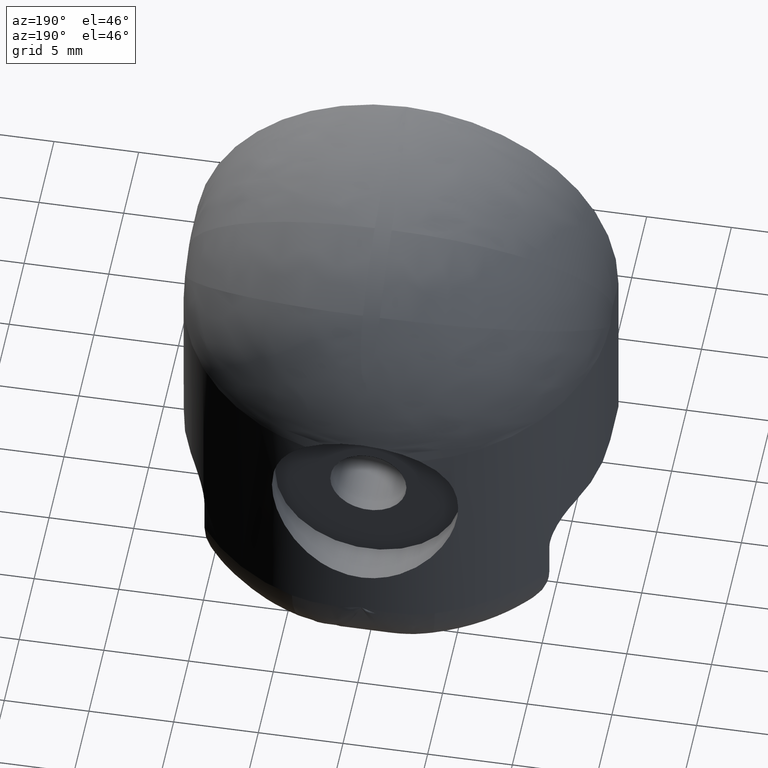
[diagram: clean part render]
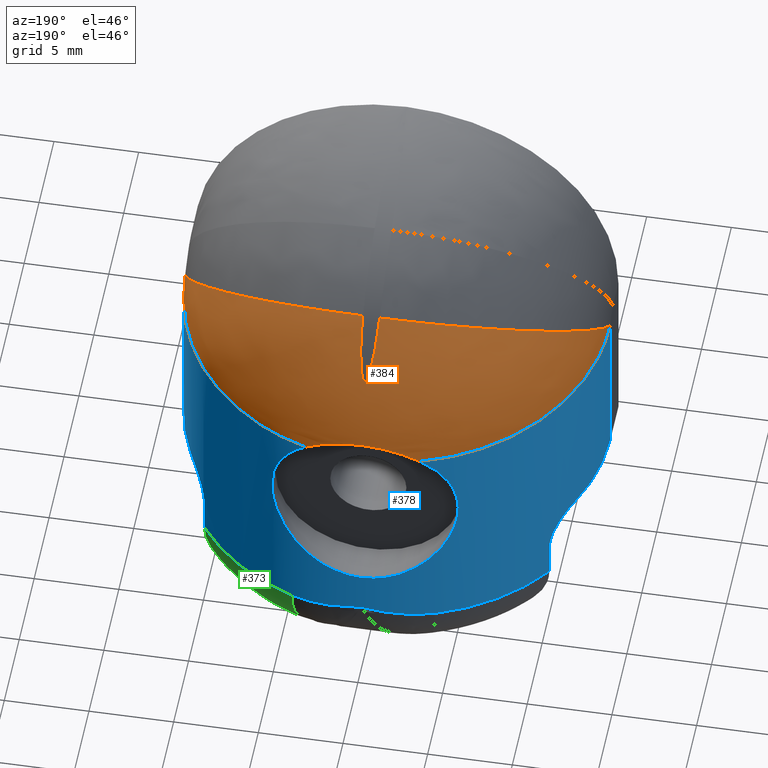
[diagram: same view with three faces highlighted in distinct colors, each labeled with its STEP entity id]
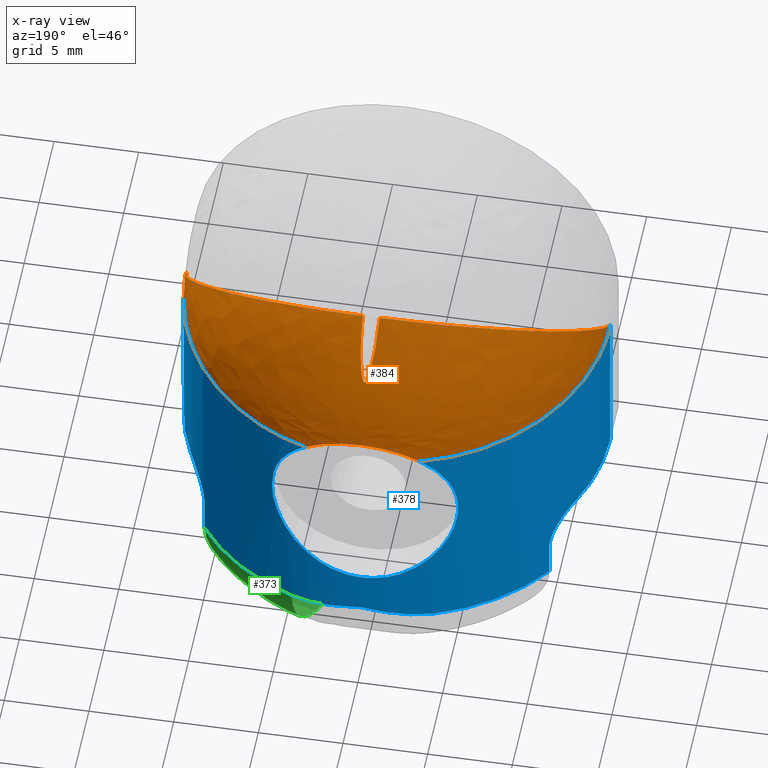
[diagram: x-ray of the same camera — body ghosted, the three highlighted faces saturated]
A machine part, auxiliary view with three faces highlighted in distinct colors.
The next image is the same camera in x-ray (body ghosted, the three faces saturated) — at least one of them is partly hidden behind the body in this view.
Their STEP definitions:

[orange] entity #384 — the highlighted face is a freeform B-spline surface patch.
#83=FACE_OUTER_BOUND('',#108,.T.);
#108=EDGE_LOOP('',(#316,#317,#318,#319,#320,#321));
#127=B_SPLINE_CURVE_WITH_KNOTS('',3,(#744,#745,#746,#747,#748,#749,#750,
#751,#752,#753,#754,#755,#756,#757,#758,#759,#760,#761,#762,#763,#764,#765,
#766,#767,#768,#769,#770,#771,#772,#773,#774,#775,#776,#777,#778,#779,#780,
#781,#782,#783,#784,#785,#786,#787,#788,#789,#790,#791,#792),
 .UNSPECIFIED.,.F.,.F.,(4,3,3,3,3,3,3,3,3,3,3,3,3,3,3,3,4),(-0.456646644338661,
-0.454868879260851,-0.45038531130313,-0.445515497622795,-0.444072703048636,
-0.438864950262662,-0.428755292193644,-0.422858124639853,-0.41438832924538,
-0.403835132300962,-0.393345346554678,-0.390837486181154,-0.380785982674792,
-0.373556848016943,-0.366193542880042,-0.359257082691747,-0.35883023774314),
 .UNSPECIFIED.);
#130=B_SPLINE_CURVE_WITH_KNOTS('',3,(#829,#830,#831,#832,#833,#834,#835,
#836),.UNSPECIFIED.,.F.,.F.,(4,1,1,1,1,4),(-0.582920065006398,-0.550907232540218,
-0.518894400074039,-0.502887983840949,-0.486881567607859,-0.485102951852755),
 .UNSPECIFIED.);
#132=B_SPLINE_CURVE_WITH_KNOTS('',3,(#859,#860,#861,#862,#863,#864,#865,
#866,#867,#868,#869,#870,#871,#872,#873,#874,#875,#876,#877,#878),
 .UNSPECIFIED.,.F.,.F.,(4,2,2,2,2,2,2,2,2,4),(-0.728876789548664,-0.565301202339906,
-0.459023419868751,-0.40685187926993,-0.377897681021136,-0.353836698865032,
-0.326001683528134,-0.278600268684722,-0.136689364270618,0.),
 .UNSPECIFIED.);
#135=B_SPLINE_CURVE_WITH_KNOTS('',3,(#1063,#1064,#1065,#1066,#1067,#1068,
#1069,#1070,#1071,#1072,#1073,#1074,#1075,#1076,#1077),.UNSPECIFIED.,.F.,
 .F.,(4,1,1,1,1,1,1,1,1,1,1,1,4),(0.35883023774314,0.39084307020932,0.422855902675499,
0.438862318908589,0.454868735141679,0.462871943258224,0.470875151374769,
0.478878359491314,0.486881567607859,0.502887983840949,0.518894400074039,
0.550907232540218,0.582920065006398),.UNSPECIFIED.);
#151=CIRCLE('',#438,12.);
#152=CIRCLE('',#439,12.);
#173=VERTEX_POINT('',#741);
#174=VERTEX_POINT('',#743);
#176=VERTEX_POINT('',#819);
#177=VERTEX_POINT('',#828);
#187=VERTEX_POINT('',#1060);
#188=VERTEX_POINT('',#1062);
#215=EDGE_CURVE('',#174,#173,#127,.T.);
#218=EDGE_CURVE('',#177,#176,#130,.T.);
#225=EDGE_CURVE('',#176,#174,#132,.T.);
#233=EDGE_CURVE('',#173,#187,#151,.T.);
#234=EDGE_CURVE('',#187,#188,#135,.T.);
#235=EDGE_CURVE('',#188,#177,#152,.T.);
#316=ORIENTED_EDGE('',*,*,#225,.T.);
#317=ORIENTED_EDGE('',*,*,#215,.T.);
#318=ORIENTED_EDGE('',*,*,#233,.T.);
#319=ORIENTED_EDGE('',*,*,#234,.T.);
#320=ORIENTED_EDGE('',*,*,#235,.T.);
#321=ORIENTED_EDGE('',*,*,#218,.T.);
#369=B_SPLINE_SURFACE_WITH_KNOTS('',3,3,((#970,#971,#972,#973,#974,#975,
#976,#977,#978,#979,#980,#981,#982,#983,#984),(#985,#986,#987,#988,#989,
#990,#991,#992,#993,#994,#995,#996,#997,#998,#999),(#1000,#1001,#1002,#1003,
#1004,#1005,#1006,#1007,#1008,#1009,#1010,#1011,#1012,#1013,#1014),(#1015,
#1016,#1017,#1018,#1019,#1020,#1021,#1022,#1023,#1024,#1025,#1026,#1027,
#1028,#1029),(#1030,#1031,#1032,#1033,#1034,#1035,#1036,#1037,#1038,#1039,
#1040,#1041,#1042,#1043,#1044),(#1045,#1046,#1047,#1048,#1049,#1050,#1051,
#1052,#1053,#1054,#1055,#1056,#1057,#1058,#1059)),.UNSPECIFIED.,.F.,.F.,
 .F.,(4,1,1,4),(4,1,1,1,1,1,1,1,1,1,1,1,4),(0.,0.285714285714286,0.571428571428571,
1.),(0.35883023774314,0.39084307020932,0.422855902675499,0.438862318908589,
0.454868735141679,0.462871943258224,0.470875151374769,0.478878359491314,
0.486881567607859,0.502887983840949,0.518894400074039,0.550907232540218,
0.582920065006398),.UNSPECIFIED.);
#384=ADVANCED_FACE('',(#83),#369,.F.);
#438=AXIS2_PLACEMENT_3D('',#1061,#512,#513);
#439=AXIS2_PLACEMENT_3D('',#1078,#514,#515);
#512=DIRECTION('center_axis',(4.42917545829373E-11,0.649659088079124,-0.760225669966623));
#513=DIRECTION('ref_axis',(-1.,6.45042352864777E-11,-3.13853110167628E-12));
#514=DIRECTION('center_axis',(2.10369389344927E-16,0.649659088089581,-0.760225669957687));
#515=DIRECTION('ref_axis',(5.78241158658936E-18,0.760225669957687,0.649659088089581));
#741=CARTESIAN_POINT('',(-12.5,1.37500000080637,2.08269537469753));
#743=CARTESIAN_POINT('',(-3.35531667820099,13.4162561632492,1.35796397288763));
#744=CARTESIAN_POINT('Ctrl Pts',(-3.3547016143458,13.4143974066286,1.35813622619737));
#745=CARTESIAN_POINT('Ctrl Pts',(-3.48054966481484,13.3792749420731,1.36093030908873));
#746=CARTESIAN_POINT('Ctrl Pts',(-3.60442653845157,13.3426251321155,1.36383743098158));
#747=CARTESIAN_POINT('Ctrl Pts',(-3.7262829233477,13.3046407199789,1.36683910967369));
#748=CARTESIAN_POINT('Ctrl Pts',(-4.03360777159893,13.20884308323,1.37440941835582));
#749=CARTESIAN_POINT('Ctrl Pts',(-4.32807767140386,13.1045548702413,1.3825813334243));
#750=CARTESIAN_POINT('Ctrl Pts',(-4.61067451175507,12.9929395261586,1.39123568962495));
#751=CARTESIAN_POINT('Ctrl Pts',(-4.91761620911274,12.8717088601635,1.40063559225113));
#752=CARTESIAN_POINT('Ctrl Pts',(-5.21055124595598,12.7418347547506,1.41060461758869));
#753=CARTESIAN_POINT('Ctrl Pts',(-5.49079266466546,12.6048366944549,1.42098705021467));
#754=CARTESIAN_POINT('Ctrl Pts',(-5.57382064579781,12.5642478606637,1.42406308524243));
#755=CARTESIAN_POINT('Ctrl Pts',(-5.65573473838718,12.5230338504538,1.42717539085821));
#756=CARTESIAN_POINT('Ctrl Pts',(-5.73656985841593,12.4812344962647,1.4303198780481));
#757=CARTESIAN_POINT('Ctrl Pts',(-6.02834342692925,12.3303601395622,1.44166987354771));
#758=CARTESIAN_POINT('Ctrl Pts',(-6.30624267348884,12.1717647362418,1.45346169346072));
#759=CARTESIAN_POINT('Ctrl Pts',(-6.57199778838092,12.0072292089139,1.46552177295688));
#760=CARTESIAN_POINT('Ctrl Pts',(-7.08790041511236,11.6878212051449,1.48893365232254));
#761=CARTESIAN_POINT('Ctrl Pts',(-7.55803455479112,11.346026392541,1.51335644202766));
#762=CARTESIAN_POINT('Ctrl Pts',(-7.99087742085803,10.985548648598,1.53839327957655));
#763=CARTESIAN_POINT('Ctrl Pts',(-8.24336339894289,10.7752747064992,1.55299777213553));
#764=CARTESIAN_POINT('Ctrl Pts',(-8.4831616665098,10.5586442324867,1.56781119509864));
#765=CARTESIAN_POINT('Ctrl Pts',(-8.71196171412408,10.3363960429356,1.58275484665003));
#766=CARTESIAN_POINT('Ctrl Pts',(-9.04057533614889,10.0171925142722,1.60421763703745));
#767=CARTESIAN_POINT('Ctrl Pts',(-9.34650079059578,9.6864003100666,1.62594903742839));
#768=CARTESIAN_POINT('Ctrl Pts',(-9.63049175348492,9.34469936770293,1.64787207236906));
#769=CARTESIAN_POINT('Ctrl Pts',(-9.98433885630399,8.91894677594484,1.6751877387545));
#770=CARTESIAN_POINT('Ctrl Pts',(-10.3043562206931,8.47598792249689,1.70276864531804));
#771=CARTESIAN_POINT('Ctrl Pts',(-10.5919235537884,8.01708275176165,1.73047402877941));
#772=CARTESIAN_POINT('Ctrl Pts',(-10.8777629754999,7.56093501338172,1.75801293836851));
#773=CARTESIAN_POINT('Ctrl Pts',(-11.1315408394342,7.08903232370425,1.78567468671276));
#774=CARTESIAN_POINT('Ctrl Pts',(-11.3546494618634,6.60264743612316,1.81332624101092));
#775=CARTESIAN_POINT('Ctrl Pts',(-11.4079894715371,6.48636428074246,1.8199370754901));
#776=CARTESIAN_POINT('Ctrl Pts',(-11.4595766834679,6.36925350522846,1.82654735662673));
#777=CARTESIAN_POINT('Ctrl Pts',(-11.5094304718239,6.25133276732619,1.83315532618987));
#778=CARTESIAN_POINT('Ctrl Pts',(-11.7092444382458,5.77870649075556,1.85964006590469));
#779=CARTESIAN_POINT('Ctrl Pts',(-11.8812090764627,5.29306732431599,1.88608705512316));
#780=CARTESIAN_POINT('Ctrl Pts',(-12.0231037549091,4.79566831975229,1.91243922179708));
#781=CARTESIAN_POINT('Ctrl Pts',(-12.1251557252507,4.43793433693123,1.93139194476944));
#782=CARTESIAN_POINT('Ctrl Pts',(-12.2117409598939,4.07380420476121,1.9502909855528));
#783=CARTESIAN_POINT('Ctrl Pts',(-12.2819525113089,3.703833898107,1.96910233514362));
#784=CARTESIAN_POINT('Ctrl Pts',(-12.3534671671663,3.32699705823289,1.98826281750146));
#785=CARTESIAN_POINT('Ctrl Pts',(-12.407994062832,2.94410144595695,2.00733229093123));
#786=CARTESIAN_POINT('Ctrl Pts',(-12.444627395561,2.55575628608628,2.02627585896255));
#787=CARTESIAN_POINT('Ctrl Pts',(-12.479137123097,2.18992318659137,2.04412128340585));
#788=CARTESIAN_POINT('Ctrl Pts',(-12.4977678073635,1.8192544203165,2.06185496228711));
#789=CARTESIAN_POINT('Ctrl Pts',(-12.4998112971112,1.44427375628603,2.07944895286455));
#790=CARTESIAN_POINT('Ctrl Pts',(-12.4999370461608,1.42119878750915,2.08053162411184));
#791=CARTESIAN_POINT('Ctrl Pts',(-12.4999999999985,1.39810749451986,2.08161376684512));
#792=CARTESIAN_POINT('Ctrl Pts',(-12.5,1.37500000080819,2.0826953747352));
#819=CARTESIAN_POINT('',(3.35531667820209,13.4162561632488,1.35796397288732));
#828=CARTESIAN_POINT('',(12.5,1.37499999999999,2.08269537477302));
#829=CARTESIAN_POINT('Ctrl Pts',(12.5,1.37499999999999,2.08269537477302));
#830=CARTESIAN_POINT('Ctrl Pts',(12.5,3.10799700580534,2.00157782657418));
#831=CARTESIAN_POINT('Ctrl Pts',(11.792065780186,6.38226096010699,1.83359009836522));
#832=CARTESIAN_POINT('Ctrl Pts',(9.49603828124267,9.81514464658977,1.62145224428745));
#833=CARTESIAN_POINT('Ctrl Pts',(6.6864750013236,12.0625746777201,1.46305106461255));
#834=CARTESIAN_POINT('Ctrl Pts',(4.72024449545402,13.0128779804164,1.38997647607006));
#835=CARTESIAN_POINT('Ctrl Pts',(3.48085239485498,13.3796074276783,1.36089867083318));
#836=CARTESIAN_POINT('Ctrl Pts',(3.35489523630197,13.4147569629596,1.35810252469211));
#859=CARTESIAN_POINT('Ctrl Pts',(3.35531667820086,13.4162561632492,1.35796397288769));
#860=CARTESIAN_POINT('Ctrl Pts',(2.93342260475753,13.5338176702769,1.68279185808026));
#861=CARTESIAN_POINT('Ctrl Pts',(2.46315754091522,13.6266572614907,1.94727014913054));
#862=CARTESIAN_POINT('Ctrl Pts',(1.62918619715728,13.7368092749507,2.26491020579985));
#863=CARTESIAN_POINT('Ctrl Pts',(1.28849732422677,13.7688367452532,2.35861358491467));
#864=CARTESIAN_POINT('Ctrl Pts',(0.769217000710376,13.7995347937545,2.44870804347468));
#865=CARTESIAN_POINT('Ctrl Pts',(0.596803737178394,13.8068589756314,2.47028524585735));
#866=CARTESIAN_POINT('Ctrl Pts',(0.327400022094928,13.8139182267961,2.49109365319527));
#867=CARTESIAN_POINT('Ctrl Pts',(0.231053096886031,13.815578054839,2.49599130723256));
#868=CARTESIAN_POINT('Ctrl Pts',(0.0544738330195558,13.8170432003336,2.50031444314462));
#869=CARTESIAN_POINT('Ctrl Pts',(-0.0257017746818228,13.8171142454593,2.50052415314626));
#870=CARTESIAN_POINT('Ctrl Pts',(-0.198575381057974,13.8159864998117,2.49719642288105));
#871=CARTESIAN_POINT('Ctrl Pts',(-0.291227862968587,13.8145870677115,2.49306677394873));
#872=CARTESIAN_POINT('Ctrl Pts',(-0.541223102151156,13.8086568140287,2.47558277983116));
#873=CARTESIAN_POINT('Ctrl Pts',(-0.69810066967334,13.8026208608989,2.45779528260516));
#874=CARTESIAN_POINT('Ctrl Pts',(-1.32034533297342,13.7693315595169,2.36000285441877));
#875=CARTESIAN_POINT('Ctrl Pts',(-1.77357619522018,13.7240208281465,2.22721712739829));
#876=CARTESIAN_POINT('Ctrl Pts',(-2.6161194116529,13.5955552979013,1.8589550638584));
#877=CARTESIAN_POINT('Ctrl Pts',(-3.00278459770951,13.5144898319991,1.62938814633944));
#878=CARTESIAN_POINT('Ctrl Pts',(-3.35531667820088,13.4162561632492,1.35796397288768));
#970=CARTESIAN_POINT('Ctrl Pts',(-0.500000000000001,10.4977080396318,9.87860443168468));
#971=CARTESIAN_POINT('Ctrl Pts',(-0.49999999999552,10.7969923050676,9.52838446959026));
#972=CARTESIAN_POINT('Ctrl Pts',(-0.471671755780864,11.3626751561371,8.80274551395017));
#973=CARTESIAN_POINT('Ctrl Pts',(-0.379794915656709,11.9554461066541,7.88692149684663));
#974=CARTESIAN_POINT('Ctrl Pts',(-0.267473897320376,12.3435068745935,7.20307993801359));
#975=CARTESIAN_POINT('Ctrl Pts',(-0.174307512625066,12.5376470520617,6.82998447872586));
#976=CARTESIAN_POINT('Ctrl Pts',(-0.0799058566369898,12.6371875717448,6.629382696521));
#977=CARTESIAN_POINT('Ctrl Pts',(-2.43986797466254E-5,12.6657695737248,
6.57064438388171));
#978=CARTESIAN_POINT('Ctrl Pts',(0.079932514149245,12.637209550037,6.6293312952003));
#979=CARTESIAN_POINT('Ctrl Pts',(0.174322110266359,12.5377293524345,6.8297807062553));
#980=CARTESIAN_POINT('Ctrl Pts',(0.267459000052934,12.3433873674754,7.20338407444005));
#981=CARTESIAN_POINT('Ctrl Pts',(0.379841531249703,11.9552698314929,7.88725715058353));
#982=CARTESIAN_POINT('Ctrl Pts',(0.471682631207441,11.3624316388653,8.80313017079871));
#983=CARTESIAN_POINT('Ctrl Pts',(0.499999999999997,10.7969861119757,9.52839171670462));
#984=CARTESIAN_POINT('Ctrl Pts',(0.499999999999997,10.4977080394922,9.87860443184799));
#985=CARTESIAN_POINT('Ctrl Pts',(-2.29519580199514,10.4977080396808,9.87860443162736));
#986=CARTESIAN_POINT('Ctrl Pts',(-2.1743379217735,10.9018639764331,9.40506157428354));
#987=CARTESIAN_POINT('Ctrl Pts',(-1.86202310559032,11.5834943213065,8.50247130657697));
#988=CARTESIAN_POINT('Ctrl Pts',(-1.38520469213172,12.2054982985876,7.47885464734437));
#989=CARTESIAN_POINT('Ctrl Pts',(-0.930995321366869,12.5885131786536,6.75276025094267));
#990=CARTESIAN_POINT('Ctrl Pts',(-0.593121574091873,12.7730507096675,6.36745492646727));
#991=CARTESIAN_POINT('Ctrl Pts',(-0.26902836547901,12.8662645134999,6.16293643830098));
#992=CARTESIAN_POINT('Ctrl Pts',(-6.10360352547132E-5,12.8928138083332,
6.10335255400543));
#993=CARTESIAN_POINT('Ctrl Pts',(0.269098820235765,12.8662761640501,6.16288082629553));
#994=CARTESIAN_POINT('Ctrl Pts',(0.593188216871467,12.7731214181468,6.36725667466665));
#995=CARTESIAN_POINT('Ctrl Pts',(0.930868709423921,12.5883614855599,6.7530290954121));
#996=CARTESIAN_POINT('Ctrl Pts',(1.38541760887877,12.2054096009084,7.47922561926202));
#997=CARTESIAN_POINT('Ctrl Pts',(1.86210230366298,11.5832105041685,8.50289675745602));
#998=CARTESIAN_POINT('Ctrl Pts',(2.17434042270052,10.9018556132442,9.40507137331063));
#999=CARTESIAN_POINT('Ctrl Pts',(2.29519580205131,10.4977080394922,9.87860443184799));
#1000=CARTESIAN_POINT('Ctrl Pts',(-5.87805482256339,9.87365165884398,9.34531028562375));
#1001=CARTESIAN_POINT('Ctrl Pts',(-5.51778664473396,10.5570334379611,8.71748831385718));
#1002=CARTESIAN_POINT('Ctrl Pts',(-4.6406805216593,11.6087940716777,7.61645929524082));
#1003=CARTESIAN_POINT('Ctrl Pts',(-3.39554994289391,12.448407451653,6.50978981721481));
#1004=CARTESIAN_POINT('Ctrl Pts',(-2.25794731498808,12.9290468860401,5.77226473350221));
#1005=CARTESIAN_POINT('Ctrl Pts',(-1.43074538273075,13.1497880354918,5.39504047860978));
#1006=CARTESIAN_POINT('Ctrl Pts',(-0.647272327894391,13.2589399352593,5.19812705751518));
#1007=CARTESIAN_POINT('Ctrl Pts',(-0.000137544373785821,13.289710892521,
5.14117833951055));
#1008=CARTESIAN_POINT('Ctrl Pts',(0.647435277951207,13.2589541998888,5.19807860878914));
#1009=CARTESIAN_POINT('Ctrl Pts',(1.430913417131,13.1498609249288,5.39486283529497));
#1010=CARTESIAN_POINT('Ctrl Pts',(2.25761941679765,12.9288881013855,5.77252283409829));
#1011=CARTESIAN_POINT('Ctrl Pts',(3.39607805327137,12.4483269310615,6.51010730236057));
#1012=CARTESIAN_POINT('Ctrl Pts',(4.64090327547678,11.6083983501698,7.61693537885338));
#1013=CARTESIAN_POINT('Ctrl Pts',(5.51779409979925,10.557019296775,8.71750130536843));
#1014=CARTESIAN_POINT('Ctrl Pts',(5.87805482273084,9.87365165852543,9.34531028591637));
#1015=CARTESIAN_POINT('Ctrl Pts',(-10.9315273964112,6.82281090406052,6.73818124336646));
#1016=CARTESIAN_POINT('Ctrl Pts',(-10.3955775960087,8.11278766738734,6.18681465666413));
#1017=CARTESIAN_POINT('Ctrl Pts',(-8.94637813696258,10.1856514605497,5.26509760228076));
#1018=CARTESIAN_POINT('Ctrl Pts',(-6.6744654166116,11.9405019108407,4.40204605862625));
#1019=CARTESIAN_POINT('Ctrl Pts',(-4.49012482881344,12.9753268743209,3.84744374394996));
#1020=CARTESIAN_POINT('Ctrl Pts',(-2.86185094843334,13.4603928852804,3.57019305238251));
#1021=CARTESIAN_POINT('Ctrl Pts',(-1.29813841912767,13.7022055936631,3.42687656978006));
#1022=CARTESIAN_POINT('Ctrl Pts',(-0.000365156553979748,13.7707117284011,
3.38563055729812));
#1023=CARTESIAN_POINT('Ctrl Pts',(1.29858685894913,13.7022570636753,3.4268476593576));
#1024=CARTESIAN_POINT('Ctrl Pts',(2.86211565962749,13.4605633229376,3.57007036321869));
#1025=CARTESIAN_POINT('Ctrl Pts',(4.48999714909428,12.9750733651149,3.84765504743448));
#1026=CARTESIAN_POINT('Ctrl Pts',(6.67508745169825,11.940178475562,4.40221915298952));
#1027=CARTESIAN_POINT('Ctrl Pts',(8.94691385071678,10.1848792933766,5.26548597729416));
#1028=CARTESIAN_POINT('Ctrl Pts',(10.3955886864946,8.11276097394582,6.18682606607804));
#1029=CARTESIAN_POINT('Ctrl Pts',(10.9315273966617,6.82281090345883,6.73818124362369));
#1030=CARTESIAN_POINT('Ctrl Pts',(-12.4999999998677,3.42213089774765,3.83209327620666));
#1031=CARTESIAN_POINT('Ctrl Pts',(-12.2125609748623,5.07031830719443,3.57239387704588));
#1032=CARTESIAN_POINT('Ctrl Pts',(-11.0498437893326,7.9789424142078,3.12068435240718));
#1033=CARTESIAN_POINT('Ctrl Pts',(-8.58637722824107,10.76424660509,2.6636010061972));
#1034=CARTESIAN_POINT('Ctrl Pts',(-5.92238607463939,12.5100243448826,2.3567469396323));
#1035=CARTESIAN_POINT('Ctrl Pts',(-3.81990439917776,13.3604105343859,2.19868128151847));
#1036=CARTESIAN_POINT('Ctrl Pts',(-1.74283673865114,13.7914639514582,2.11592667154728));
#1037=CARTESIAN_POINT('Ctrl Pts',(-0.000422590914477929,13.9145386623325,
2.09193965075918));
#1038=CARTESIAN_POINT('Ctrl Pts',(1.7432726410222,13.7915376400284,2.11589876655346));
#1039=CARTESIAN_POINT('Ctrl Pts',(3.82030332175067,13.3607483834645,2.19860492398679));
#1040=CARTESIAN_POINT('Ctrl Pts',(5.92147511925219,12.5094252372376,2.35681699347661));
#1041=CARTESIAN_POINT('Ctrl Pts',(8.58789092268027,10.7636291521897,2.66378951705931));
#1042=CARTESIAN_POINT('Ctrl Pts',(11.050054566605,7.97772973027856,3.12086770669621));
#1043=CARTESIAN_POINT('Ctrl Pts',(12.2125669229395,5.07028420127191,3.57239925100112));
#1044=CARTESIAN_POINT('Ctrl Pts',(12.5,3.42213089697952,3.83209327632737));
#1045=CARTESIAN_POINT('Ctrl Pts',(-12.5,1.37500000080812,2.08269537473521));
#1046=CARTESIAN_POINT('Ctrl Pts',(-12.499999999888,3.10803286746897,2.00157614797105));
#1047=CARTESIAN_POINT('Ctrl Pts',(-11.7917938945216,6.38367106910487,1.83350100274128));
#1048=CARTESIAN_POINT('Ctrl Pts',(-9.49487289141775,9.81616538400629,1.62137449894311));
#1049=CARTESIAN_POINT('Ctrl Pts',(-6.68684743300937,12.0632666945997,1.46298061942238));
#1050=CARTESIAN_POINT('Ctrl Pts',(-4.3576878156266,13.1874531191748,1.37656288644788));
#1051=CARTESIAN_POINT('Ctrl Pts',(-1.99764641592468,13.7638515874473,1.3300987689754));
#1052=CARTESIAN_POINT('Ctrl Pts',(-0.000609966993593999,13.9293582797363,
1.316493586466));
#1053=CARTESIAN_POINT('Ctrl Pts',(1.99831285373122,13.7639788547552,1.33008686321378));
#1054=CARTESIAN_POINT('Ctrl Pts',(4.35805275665904,13.1879296869985,1.37651568792395));
#1055=CARTESIAN_POINT('Ctrl Pts',(6.6864750013236,12.0625746777201,1.46305106461255));
#1056=CARTESIAN_POINT('Ctrl Pts',(9.49603828124267,9.81514464658977,1.62145224428745));
#1057=CARTESIAN_POINT('Ctrl Pts',(11.792065780186,6.38226096010699,1.83359009836522));
#1058=CARTESIAN_POINT('Ctrl Pts',(12.5,3.10799700580534,2.00157782657418));
#1059=CARTESIAN_POINT('Ctrl Pts',(12.5,1.37499999999999,2.08269537477302));
#1060=CARTESIAN_POINT('',(-0.500000000000001,10.4977080396318,9.87860443168468));
#1061=CARTESIAN_POINT('Origin',(-0.500000000000001,1.37500000003232,2.08269537473519));
#1062=CARTESIAN_POINT('',(0.499999999999997,10.4977080394922,9.87860443184799));
#1063=CARTESIAN_POINT('Ctrl Pts',(-0.500000000000001,10.4977080396318,9.87860443168468));
#1064=CARTESIAN_POINT('Ctrl Pts',(-0.49999999999552,10.7969923050676,9.52838446959026));
#1065=CARTESIAN_POINT('Ctrl Pts',(-0.471671755780864,11.3626751561371,8.80274551395017));
#1066=CARTESIAN_POINT('Ctrl Pts',(-0.379794915656709,11.9554461066541,7.88692149684663));
#1067=CARTESIAN_POINT('Ctrl Pts',(-0.267473897320376,12.3435068745935,7.20307993801359));
#1068=CARTESIAN_POINT('Ctrl Pts',(-0.174307512625066,12.5376470520617,6.82998447872586));
#1069=CARTESIAN_POINT('Ctrl Pts',(-0.0799058566369898,12.6371875717448,
6.629382696521));
#1070=CARTESIAN_POINT('Ctrl Pts',(-2.43986797466254E-5,12.6657695737248,
6.57064438388171));
#1071=CARTESIAN_POINT('Ctrl Pts',(0.079932514149245,12.637209550037,6.6293312952003));
#1072=CARTESIAN_POINT('Ctrl Pts',(0.174322110266359,12.5377293524345,6.8297807062553));
#1073=CARTESIAN_POINT('Ctrl Pts',(0.267459000052934,12.3433873674754,7.20338407444005));
#1074=CARTESIAN_POINT('Ctrl Pts',(0.379841531249703,11.9552698314929,7.88725715058353));
#1075=CARTESIAN_POINT('Ctrl Pts',(0.471682631207441,11.3624316388653,8.80313017079871));
#1076=CARTESIAN_POINT('Ctrl Pts',(0.499999999999997,10.7969861119757,9.52839171670462));
#1077=CARTESIAN_POINT('Ctrl Pts',(0.499999999999997,10.4977080394922,9.87860443184799));
#1078=CARTESIAN_POINT('Origin',(0.499999999999996,1.375,2.08269537477302));

[blue] entity #378 — the highlighted cylindrical surface (partial cylindrical patch) has radius 12.5 mm, axis along (0, 0, 1).
#20=CYLINDRICAL_SURFACE('',#426,12.5);
#29=LINE('',#723,#46);
#31=LINE('',#726,#48);
#32=LINE('',#742,#49);
#33=LINE('',#838,#50);
#46=VECTOR('',#480,10.);
#48=VECTOR('',#482,10.);
#49=VECTOR('',#487,10.);
#50=VECTOR('',#488,10.);
#77=FACE_OUTER_BOUND('',#101,.T.);
#101=EDGE_LOOP('',(#279,#280,#281,#282,#283,#284,#285,#286,#287,#288,#289,
#290,#291,#292,#293,#294));
#121=B_SPLINE_CURVE_WITH_KNOTS('',3,(#604,#605,#606,#607,#608,#609,#610,
#611),.UNSPECIFIED.,.F.,.F.,(4,2,1,1,4),(-0.879512326826575,-0.878315261220537,
-0.759882050580558,-0.700665445260569,-0.58223223462059),.UNSPECIFIED.);
#122=B_SPLINE_CURVE_WITH_KNOTS('',3,(#655,#656,#657,#658,#659,#660,#661,
#662),.UNSPECIFIED.,.F.,.F.,(4,1,1,2,4),(-0.296083026599947,-0.236866421279957,
-0.177649815959968,0.,0.00119706560603814),.UNSPECIFIED.);
#126=B_SPLINE_CURVE_WITH_KNOTS('',3,(#729,#730,#731,#732,#733,#734,#735,
#736,#737,#738),.UNSPECIFIED.,.F.,.F.,(4,2,2,2,4),(-0.324467577096053,-0.2378862000471,
-0.151304822998148,-0.0756524114990738,0.),.UNSPECIFIED.);
#127=B_SPLINE_CURVE_WITH_KNOTS('',3,(#744,#745,#746,#747,#748,#749,#750,
#751,#752,#753,#754,#755,#756,#757,#758,#759,#760,#761,#762,#763,#764,#765,
#766,#767,#768,#769,#770,#771,#772,#773,#774,#775,#776,#777,#778,#779,#780,
#781,#782,#783,#784,#785,#786,#787,#788,#789,#790,#791,#792),
 .UNSPECIFIED.,.F.,.F.,(4,3,3,3,3,3,3,3,3,3,3,3,3,3,3,3,4),(-0.456646644338661,
-0.454868879260851,-0.45038531130313,-0.445515497622795,-0.444072703048636,
-0.438864950262662,-0.428755292193644,-0.422858124639853,-0.41438832924538,
-0.403835132300962,-0.393345346554678,-0.390837486181154,-0.380785982674792,
-0.373556848016943,-0.366193542880042,-0.359257082691747,-0.35883023774314),
 .UNSPECIFIED.);
#128=B_SPLINE_CURVE_WITH_KNOTS('',3,(#794,#795,#796,#797,#798,#799,#800,
#801,#802,#803,#804,#805,#806,#807,#808,#809,#810,#811,#812,#813,#814,#815,
#816,#817,#818),.UNSPECIFIED.,.F.,.F.,(4,2,2,3,2,2,2,2,2,2,2,4),(2.87314396742642,
2.94458686753081,3.15509919332385,3.3656115191169,3.57612384490995,3.786636170703,
3.99682528479957,4.20701439889613,4.41720351299269,4.62739262708926,4.83790495288231,
5.04841727867536),.UNSPECIFIED.);
#129=B_SPLINE_CURVE_WITH_KNOTS('',3,(#820,#821,#822,#823,#824,#825,#826,
#827),.UNSPECIFIED.,.F.,.F.,(4,2,2,4),(5.04841727867536,5.2589296044684,
5.46944193026145,5.54088483036573),.UNSPECIFIED.);
#130=B_SPLINE_CURVE_WITH_KNOTS('',3,(#829,#830,#831,#832,#833,#834,#835,
#836),.UNSPECIFIED.,.F.,.F.,(4,1,1,1,1,4),(-0.582920065006398,-0.550907232540218,
-0.518894400074039,-0.502887983840949,-0.486881567607859,-0.485102951852755),
 .UNSPECIFIED.);
#131=B_SPLINE_CURVE_WITH_KNOTS('',3,(#841,#842,#843,#844,#845,#846,#847,
#848,#849,#850),.UNSPECIFIED.,.F.,.F.,(4,2,2,2,4),(0.,0.0756524114990737,
0.151304822998147,0.2378862000471,0.324467577096053),.UNSPECIFIED.);
#141=CIRCLE('',#419,12.5);
#142=CIRCLE('',#421,12.5);
#144=CIRCLE('',#427,12.5);
#145=CIRCLE('',#428,12.5);
#160=VERTEX_POINT('',#592);
#162=VERTEX_POINT('',#595);
#164=VERTEX_POINT('',#653);
#165=VERTEX_POINT('',#672);
#168=VERTEX_POINT('',#696);
#169=VERTEX_POINT('',#722);
#170=VERTEX_POINT('',#724);
#171=VERTEX_POINT('',#728);
#172=VERTEX_POINT('',#739);
#173=VERTEX_POINT('',#741);
#174=VERTEX_POINT('',#743);
#175=VERTEX_POINT('',#793);
#176=VERTEX_POINT('',#819);
#177=VERTEX_POINT('',#828);
#178=VERTEX_POINT('',#837);
#179=VERTEX_POINT('',#839);
#197=EDGE_CURVE('',#162,#160,#121,.T.);
#199=EDGE_CURVE('',#164,#162,#122,.T.);
#203=EDGE_CURVE('',#160,#165,#141,.T.);
#205=EDGE_CURVE('',#168,#164,#142,.T.);
#209=EDGE_CURVE('',#169,#165,#29,.T.);
#211=EDGE_CURVE('',#168,#170,#31,.T.);
#212=EDGE_CURVE('',#171,#170,#126,.T.);
#213=EDGE_CURVE('',#171,#172,#144,.T.);
#214=EDGE_CURVE('',#172,#173,#32,.T.);
#215=EDGE_CURVE('',#174,#173,#127,.T.);
#216=EDGE_CURVE('',#174,#175,#128,.T.);
#217=EDGE_CURVE('',#175,#176,#129,.T.);
#218=EDGE_CURVE('',#177,#176,#130,.T.);
#219=EDGE_CURVE('',#178,#177,#33,.T.);
#220=EDGE_CURVE('',#178,#179,#145,.T.);
#221=EDGE_CURVE('',#169,#179,#131,.T.);
#279=ORIENTED_EDGE('',*,*,#205,.F.);
#280=ORIENTED_EDGE('',*,*,#211,.T.);
#281=ORIENTED_EDGE('',*,*,#212,.F.);
#282=ORIENTED_EDGE('',*,*,#213,.T.);
#283=ORIENTED_EDGE('',*,*,#214,.T.);
#284=ORIENTED_EDGE('',*,*,#215,.F.);
#285=ORIENTED_EDGE('',*,*,#216,.T.);
#286=ORIENTED_EDGE('',*,*,#217,.T.);
#287=ORIENTED_EDGE('',*,*,#218,.F.);
#288=ORIENTED_EDGE('',*,*,#219,.F.);
#289=ORIENTED_EDGE('',*,*,#220,.T.);
#290=ORIENTED_EDGE('',*,*,#221,.F.);
#291=ORIENTED_EDGE('',*,*,#209,.T.);
#292=ORIENTED_EDGE('',*,*,#203,.F.);
#293=ORIENTED_EDGE('',*,*,#197,.F.);
#294=ORIENTED_EDGE('',*,*,#199,.F.);
#378=ADVANCED_FACE('',(#77),#20,.T.);
#419=AXIS2_PLACEMENT_3D('',#693,#464,#465);
#421=AXIS2_PLACEMENT_3D('',#715,#468,#469);
#426=AXIS2_PLACEMENT_3D('',#727,#483,#484);
#427=AXIS2_PLACEMENT_3D('',#740,#485,#486);
#428=AXIS2_PLACEMENT_3D('',#840,#489,#490);
#464=DIRECTION('center_axis',(0.,0.,-1.));
#465=DIRECTION('ref_axis',(-0.337915448294789,-0.94117647112735,0.));
#468=DIRECTION('center_axis',(0.,0.,-1.));
#469=DIRECTION('ref_axis',(0.337915448294789,-0.94117647112735,0.));
#480=DIRECTION('',(0.,0.,-1.));
#482=DIRECTION('',(0.,0.,1.));
#483=DIRECTION('center_axis',(0.,0.,1.));
#484=DIRECTION('ref_axis',(1.,-3.10862446895044E-16,0.));
#485=DIRECTION('center_axis',(0.,0.,1.));
#486=DIRECTION('ref_axis',(1.,-3.10862446895044E-16,0.));
#487=DIRECTION('',(0.,0.,1.));
#488=DIRECTION('',(0.,0.,1.));
#489=DIRECTION('center_axis',(0.,0.,1.));
#490=DIRECTION('ref_axis',(1.,-3.10862446895044E-16,0.));
#592=CARTESIAN_POINT('',(4.22394310368486,13.1397058890919,-11.5));
#595=CARTESIAN_POINT('',(-2.64141838645722E-15,13.875,-11.));
#604=CARTESIAN_POINT('Ctrl Pts',(-2.22044604925031E-15,13.875,-11.));
#605=CARTESIAN_POINT('Ctrl Pts',(0.00570264049328904,13.875,-11.000940503564));
#606=CARTESIAN_POINT('Ctrl Pts',(0.0114052947994343,13.874996070194,-11.0018808559904));
#607=CARTESIAN_POINT('Ctrl Pts',(0.581303765139115,13.8742198337073,-11.0958935496453));
#608=CARTESIAN_POINT('Ctrl Pts',(1.43035291717083,13.8155202776565,-11.2366669484552));
#609=CARTESIAN_POINT('Ctrl Pts',(2.83458632611388,13.5729133582507,-11.4263594719873));
#610=CARTESIAN_POINT('Ctrl Pts',(3.67748471077034,13.3359036675967,-11.4999999987773));
#611=CARTESIAN_POINT('Ctrl Pts',(4.22394310368486,13.1397058890919,-11.5));
#653=CARTESIAN_POINT('',(-4.22394310368487,13.1397058890919,-11.5));
#655=CARTESIAN_POINT('Ctrl Pts',(-4.22394310368487,13.1397058890919,-11.5));
#656=CARTESIAN_POINT('Ctrl Pts',(-3.95071390722761,13.2378047783443,-11.4999999993886));
#657=CARTESIAN_POINT('Ctrl Pts',(-3.39644245245334,13.4152465812065,-11.4743365948962));
#658=CARTESIAN_POINT('Ctrl Pts',(-1.99311487085374,13.7585653879053,-11.3308113193129));
#659=CARTESIAN_POINT('Ctrl Pts',(-0.864196153946586,13.8736451576406,-11.1422312471344));
#660=CARTESIAN_POINT('Ctrl Pts',(-0.011401589554331,13.8749969609675,-11.0018817715708));
#661=CARTESIAN_POINT('Ctrl Pts',(-0.00570264049328468,13.875,-11.000940503564));
#662=CARTESIAN_POINT('Ctrl Pts',(-2.29382952839892E-15,13.875,-11.));
#672=CARTESIAN_POINT('',(10.1827059272082,8.62499999999999,-11.5));
#693=CARTESIAN_POINT('Origin',(-2.64141838645722E-15,1.375,-11.5));
#696=CARTESIAN_POINT('',(-10.1827059272082,8.62499999999999,-11.5));
#715=CARTESIAN_POINT('Origin',(-2.64141838645722E-15,1.375,-11.5));
#722=CARTESIAN_POINT('',(10.1827059272082,8.62499999999999,-9.50000000000001));
#723=CARTESIAN_POINT('',(10.1827059272082,8.62499999999999,0.));
#724=CARTESIAN_POINT('',(-10.1827059272082,8.62499999999999,-9.50000000000001));
#726=CARTESIAN_POINT('',(-10.1827059272082,8.62499999999999,0.));
#727=CARTESIAN_POINT('Origin',(-2.64141838645722E-15,1.375,0.));
#728=CARTESIAN_POINT('',(-11.3440513045384,6.62499999999999,-7.50000000000001));
#729=CARTESIAN_POINT('Ctrl Pts',(-11.3440513045384,6.62499999999999,-7.50000000000001));
#730=CARTESIAN_POINT('Ctrl Pts',(-11.2228373766699,6.8869156222029,-7.50000000000001));
#731=CARTESIAN_POINT('Ctrl Pts',(-11.083290518532,7.16236784815973,-7.5540901787177));
#732=CARTESIAN_POINT('Ctrl Pts',(-10.8049696149161,7.666707792406,-7.77078803807949));
#733=CARTESIAN_POINT('Ctrl Pts',(-10.6665247784679,7.89586165146393,-7.9331988817342));
#734=CARTESIAN_POINT('Ctrl Pts',(-10.4501261544158,8.23650706602854,-8.29316357877867));
#735=CARTESIAN_POINT('Ctrl Pts',(-10.3534791765713,8.37995687470145,-8.50677976734108));
#736=CARTESIAN_POINT('Ctrl Pts',(-10.2192550444119,8.57435960560804,-8.98390270022595));
#737=CARTESIAN_POINT('Ctrl Pts',(-10.1827059272082,8.62499999999999,-9.24782529500309));
#738=CARTESIAN_POINT('Ctrl Pts',(-10.1827059272082,8.62499999999999,-9.50000000000001));
#739=CARTESIAN_POINT('',(-12.5,1.37499999999999,-7.50000000000001));
#740=CARTESIAN_POINT('Origin',(-2.64141838645722E-15,1.375,-7.50000000000001));
#741=CARTESIAN_POINT('',(-12.5,1.37500000080637,2.08269537469753));
#742=CARTESIAN_POINT('',(-12.5,1.37499999999999,0.));
#743=CARTESIAN_POINT('',(-3.35531667820099,13.4162561632492,1.35796397288763));
#744=CARTESIAN_POINT('Ctrl Pts',(-3.3547016143458,13.4143974066286,1.35813622619737));
#745=CARTESIAN_POINT('Ctrl Pts',(-3.48054966481484,13.3792749420731,1.36093030908873));
#746=CARTESIAN_POINT('Ctrl Pts',(-3.60442653845157,13.3426251321155,1.36383743098158));
#747=CARTESIAN_POINT('Ctrl Pts',(-3.7262829233477,13.3046407199789,1.36683910967369));
#748=CARTESIAN_POINT('Ctrl Pts',(-4.03360777159893,13.20884308323,1.37440941835582));
#749=CARTESIAN_POINT('Ctrl Pts',(-4.32807767140386,13.1045548702413,1.3825813334243));
#750=CARTESIAN_POINT('Ctrl Pts',(-4.61067451175507,12.9929395261586,1.39123568962495));
#751=CARTESIAN_POINT('Ctrl Pts',(-4.91761620911274,12.8717088601635,1.40063559225113));
#752=CARTESIAN_POINT('Ctrl Pts',(-5.21055124595598,12.7418347547506,1.41060461758869));
#753=CARTESIAN_POINT('Ctrl Pts',(-5.49079266466546,12.6048366944549,1.42098705021467));
#754=CARTESIAN_POINT('Ctrl Pts',(-5.57382064579781,12.5642478606637,1.42406308524243));
#755=CARTESIAN_POINT('Ctrl Pts',(-5.65573473838718,12.5230338504538,1.42717539085821));
#756=CARTESIAN_POINT('Ctrl Pts',(-5.73656985841593,12.4812344962647,1.4303198780481));
#757=CARTESIAN_POINT('Ctrl Pts',(-6.02834342692925,12.3303601395622,1.44166987354771));
#758=CARTESIAN_POINT('Ctrl Pts',(-6.30624267348884,12.1717647362418,1.45346169346072));
#759=CARTESIAN_POINT('Ctrl Pts',(-6.57199778838092,12.0072292089139,1.46552177295688));
#760=CARTESIAN_POINT('Ctrl Pts',(-7.08790041511236,11.6878212051449,1.48893365232254));
#761=CARTESIAN_POINT('Ctrl Pts',(-7.55803455479112,11.346026392541,1.51335644202766));
#762=CARTESIAN_POINT('Ctrl Pts',(-7.99087742085803,10.985548648598,1.53839327957655));
#763=CARTESIAN_POINT('Ctrl Pts',(-8.24336339894289,10.7752747064992,1.55299777213553));
#764=CARTESIAN_POINT('Ctrl Pts',(-8.4831616665098,10.5586442324867,1.56781119509864));
#765=CARTESIAN_POINT('Ctrl Pts',(-8.71196171412408,10.3363960429356,1.58275484665003));
#766=CARTESIAN_POINT('Ctrl Pts',(-9.04057533614889,10.0171925142722,1.60421763703745));
#767=CARTESIAN_POINT('Ctrl Pts',(-9.34650079059578,9.6864003100666,1.62594903742839));
#768=CARTESIAN_POINT('Ctrl Pts',(-9.63049175348492,9.34469936770293,1.64787207236906));
#769=CARTESIAN_POINT('Ctrl Pts',(-9.98433885630399,8.91894677594484,1.6751877387545));
#770=CARTESIAN_POINT('Ctrl Pts',(-10.3043562206931,8.47598792249689,1.70276864531804));
#771=CARTESIAN_POINT('Ctrl Pts',(-10.5919235537884,8.01708275176165,1.73047402877941));
#772=CARTESIAN_POINT('Ctrl Pts',(-10.8777629754999,7.56093501338172,1.75801293836851));
#773=CARTESIAN_POINT('Ctrl Pts',(-11.1315408394342,7.08903232370425,1.78567468671276));
#774=CARTESIAN_POINT('Ctrl Pts',(-11.3546494618634,6.60264743612316,1.81332624101092));
#775=CARTESIAN_POINT('Ctrl Pts',(-11.4079894715371,6.48636428074246,1.8199370754901));
#776=CARTESIAN_POINT('Ctrl Pts',(-11.4595766834679,6.36925350522846,1.82654735662673));
#777=CARTESIAN_POINT('Ctrl Pts',(-11.5094304718239,6.25133276732619,1.83315532618987));
#778=CARTESIAN_POINT('Ctrl Pts',(-11.7092444382458,5.77870649075556,1.85964006590469));
#779=CARTESIAN_POINT('Ctrl Pts',(-11.8812090764627,5.29306732431599,1.88608705512316));
#780=CARTESIAN_POINT('Ctrl Pts',(-12.0231037549091,4.79566831975229,1.91243922179708));
#781=CARTESIAN_POINT('Ctrl Pts',(-12.1251557252507,4.43793433693123,1.93139194476944));
#782=CARTESIAN_POINT('Ctrl Pts',(-12.2117409598939,4.07380420476121,1.9502909855528));
#783=CARTESIAN_POINT('Ctrl Pts',(-12.2819525113089,3.703833898107,1.96910233514362));
#784=CARTESIAN_POINT('Ctrl Pts',(-12.3534671671663,3.32699705823289,1.98826281750146));
#785=CARTESIAN_POINT('Ctrl Pts',(-12.407994062832,2.94410144595695,2.00733229093123));
#786=CARTESIAN_POINT('Ctrl Pts',(-12.444627395561,2.55575628608628,2.02627585896255));
#787=CARTESIAN_POINT('Ctrl Pts',(-12.479137123097,2.18992318659137,2.04412128340585));
#788=CARTESIAN_POINT('Ctrl Pts',(-12.4977678073635,1.8192544203165,2.06185496228711));
#789=CARTESIAN_POINT('Ctrl Pts',(-12.4998112971112,1.44427375628603,2.07944895286455));
#790=CARTESIAN_POINT('Ctrl Pts',(-12.4999370461608,1.42119878750915,2.08053162411184));
#791=CARTESIAN_POINT('Ctrl Pts',(-12.4999999999985,1.39810749451986,2.08161376684512));
#792=CARTESIAN_POINT('Ctrl Pts',(-12.5,1.37500000080819,2.0826953747352));
#793=CARTESIAN_POINT('',(5.5,12.5999721603218,-3.));
#794=CARTESIAN_POINT('Ctrl Pts',(-3.35531667820098,13.4162561632492,1.35796397288761));
#795=CARTESIAN_POINT('Ctrl Pts',(-3.54649700480212,13.3629834374063,1.21076896568252));
#796=CARTESIAN_POINT('Ctrl Pts',(-3.72503301434636,13.30831166622,1.05314157870566));
#797=CARTESIAN_POINT('Ctrl Pts',(-4.37248660488959,13.0963514480564,0.405687988162438));
#798=CARTESIAN_POINT('Ctrl Pts',(-4.793851651599,12.9233413214512,-0.206236015931912));
#799=CARTESIAN_POINT('Ctrl Pts',(-5.35779020102175,12.6727561066936,-1.55770830736095));
#800=CARTESIAN_POINT('Ctrl Pts',(-5.5,12.5999721603218,-2.2982922473565));
#801=CARTESIAN_POINT('Ctrl Pts',(-5.5,12.5999721603218,-3.));
#802=CARTESIAN_POINT('Ctrl Pts',(-5.5,12.5999721603218,-3.7017077526435));
#803=CARTESIAN_POINT('Ctrl Pts',(-5.35779020102175,12.6727561066936,-4.44229169263905));
#804=CARTESIAN_POINT('Ctrl Pts',(-4.793851651599,12.9233413214512,-5.79376398406809));
#805=CARTESIAN_POINT('Ctrl Pts',(-4.37248660488959,13.0963514480564,-6.40568798816244));
#806=CARTESIAN_POINT('Ctrl Pts',(-3.4064301789579,13.4126143181519,-7.37174441409412));
#807=CARTESIAN_POINT('Ctrl Pts',(-2.79423612782483,13.5779964474759,-7.79366589758848));
#808=CARTESIAN_POINT('Ctrl Pts',(-1.44166873960235,13.8105325255393,-8.35803888309281));
#809=CARTESIAN_POINT('Ctrl Pts',(-0.700630380321884,13.875,-8.5));
#810=CARTESIAN_POINT('Ctrl Pts',(0.700630380321879,13.875,-8.5));
#811=CARTESIAN_POINT('Ctrl Pts',(1.44166873960234,13.8105325255393,-8.35803888309281));
#812=CARTESIAN_POINT('Ctrl Pts',(2.79423612782483,13.5779964474759,-7.79366589758848));
#813=CARTESIAN_POINT('Ctrl Pts',(3.4064301789579,13.4126143181519,-7.37174441409412));
#814=CARTESIAN_POINT('Ctrl Pts',(4.37248660488958,13.0963514480564,-6.40568798816244));
#815=CARTESIAN_POINT('Ctrl Pts',(4.79385165159899,12.9233413214512,-5.79376398406809));
#816=CARTESIAN_POINT('Ctrl Pts',(5.35779020102175,12.6727561066936,-4.44229169263905));
#817=CARTESIAN_POINT('Ctrl Pts',(5.5,12.5999721603218,-3.7017077526435));
#818=CARTESIAN_POINT('Ctrl Pts',(5.5,12.5999721603218,-3.));
#819=CARTESIAN_POINT('',(3.35531667820209,13.4162561632488,1.35796397288732));
#820=CARTESIAN_POINT('Ctrl Pts',(5.5,12.5999721603218,-3.));
#821=CARTESIAN_POINT('Ctrl Pts',(5.5,12.5999721603218,-2.29829224735651));
#822=CARTESIAN_POINT('Ctrl Pts',(5.35779020102174,12.6727561066936,-1.55770830736095));
#823=CARTESIAN_POINT('Ctrl Pts',(4.79385165159899,12.9233413214512,-0.206236015931914));
#824=CARTESIAN_POINT('Ctrl Pts',(4.37248660488958,13.0963514480564,0.405687988162437));
#825=CARTESIAN_POINT('Ctrl Pts',(3.72503301434661,13.3083116662199,1.05314157870541));
#826=CARTESIAN_POINT('Ctrl Pts',(3.54649700480266,13.3629834374061,1.21076896568204));
#827=CARTESIAN_POINT('Ctrl Pts',(3.35531667820184,13.4162561632489,1.35796397288694));
#828=CARTESIAN_POINT('',(12.5,1.37499999999999,2.08269537477302));
#829=CARTESIAN_POINT('Ctrl Pts',(12.5,1.37499999999999,2.08269537477302));
#830=CARTESIAN_POINT('Ctrl Pts',(12.5,3.10799700580534,2.00157782657418));
#831=CARTESIAN_POINT('Ctrl Pts',(11.792065780186,6.38226096010699,1.83359009836522));
#832=CARTESIAN_POINT('Ctrl Pts',(9.49603828124267,9.81514464658977,1.62145224428745));
#833=CARTESIAN_POINT('Ctrl Pts',(6.6864750013236,12.0625746777201,1.46305106461255));
#834=CARTESIAN_POINT('Ctrl Pts',(4.72024449545402,13.0128779804164,1.38997647607006));
#835=CARTESIAN_POINT('Ctrl Pts',(3.48085239485498,13.3796074276783,1.36089867083318));
#836=CARTESIAN_POINT('Ctrl Pts',(3.35489523630197,13.4147569629596,1.35810252469211));
#837=CARTESIAN_POINT('',(12.5,1.375,-7.50000000000001));
#838=CARTESIAN_POINT('',(12.5,1.37499999999999,0.));
#839=CARTESIAN_POINT('',(11.3440513045384,6.62499999999999,-7.50000000000001));
#840=CARTESIAN_POINT('Origin',(-2.64141838645722E-15,1.375,-7.50000000000001));
#841=CARTESIAN_POINT('Ctrl Pts',(10.1827059272082,8.62499999999999,-9.50000000000001));
#842=CARTESIAN_POINT('Ctrl Pts',(10.1827059272082,8.62499999999999,-9.24782529500309));
#843=CARTESIAN_POINT('Ctrl Pts',(10.2192550444119,8.57435960560804,-8.98390270022594));
#844=CARTESIAN_POINT('Ctrl Pts',(10.3534791765713,8.37995687470145,-8.50677976734108));
#845=CARTESIAN_POINT('Ctrl Pts',(10.4501261544158,8.23650706602854,-8.29316357877867));
#846=CARTESIAN_POINT('Ctrl Pts',(10.6665247784679,7.89586165146393,-7.9331988817342));
#847=CARTESIAN_POINT('Ctrl Pts',(10.8049696149161,7.666707792406,-7.77078803807949));
#848=CARTESIAN_POINT('Ctrl Pts',(11.083290518532,7.16236784815973,-7.5540901787177));
#849=CARTESIAN_POINT('Ctrl Pts',(11.2228373766699,6.8869156222029,-7.5));
#850=CARTESIAN_POINT('Ctrl Pts',(11.3440513045384,6.62499999999999,-7.50000000000001));

[green] entity #373 — the highlighted toroidal blend (fillet) surface has major radius 8.5 mm and minor (blend) radius 4 mm.
#68=TOROIDAL_SURFACE('',#417,8.5,4.);
#72=FACE_OUTER_BOUND('',#96,.T.);
#96=EDGE_LOOP('',(#258,#259,#260,#261));
#124=B_SPLINE_CURVE_WITH_KNOTS('',3,(#674,#675,#676,#677,#678,#679,#680,
#681,#682,#683,#684,#685,#686,#687,#688,#689,#690,#691),.UNSPECIFIED.,.F.,
 .F.,(4,2,2,2,2,2,2,2,4),(-1.15332080777961,-1.08652005054677,-1.01971929331392,
-0.945686185742165,-0.871653078170405,-0.781853385880433,-0.692053693590461,
-0.554332463576888,-0.416611233563317),.UNSPECIFIED.);
#138=CIRCLE('',#415,4.);
#140=CIRCLE('',#418,8.5);
#141=CIRCLE('',#419,12.5);
#160=VERTEX_POINT('',#592);
#161=VERTEX_POINT('',#593);
#165=VERTEX_POINT('',#672);
#166=VERTEX_POINT('',#673);
#195=EDGE_CURVE('',#160,#161,#138,.T.);
#201=EDGE_CURVE('',#165,#166,#124,.T.);
#202=EDGE_CURVE('',#166,#161,#140,.T.);
#203=EDGE_CURVE('',#160,#165,#141,.T.);
#258=ORIENTED_EDGE('',*,*,#201,.T.);
#259=ORIENTED_EDGE('',*,*,#202,.T.);
#260=ORIENTED_EDGE('',*,*,#195,.F.);
#261=ORIENTED_EDGE('',*,*,#203,.T.);
#373=ADVANCED_FACE('',(#72),#68,.T.);
#415=AXIS2_PLACEMENT_3D('',#594,#456,#457);
#417=AXIS2_PLACEMENT_3D('',#671,#460,#461);
#418=AXIS2_PLACEMENT_3D('',#692,#462,#463);
#419=AXIS2_PLACEMENT_3D('',#693,#464,#465);
#456=DIRECTION('center_axis',(-0.94117647112735,0.337915448294789,5.33730049197108E-9));
#457=DIRECTION('ref_axis',(0.337915448294789,0.94117647112735,0.));
#460=DIRECTION('center_axis',(0.,0.,1.));
#461=DIRECTION('ref_axis',(-0.337915448294789,-0.94117647112735,0.));
#462=DIRECTION('center_axis',(0.,0.,1.));
#463=DIRECTION('ref_axis',(-0.337915448294789,-0.94117647112735,0.));
#464=DIRECTION('center_axis',(0.,0.,-1.));
#465=DIRECTION('ref_axis',(-0.337915448294789,-0.94117647112735,0.));
#592=CARTESIAN_POINT('',(4.22394310368486,13.1397058890919,-11.5));
#593=CARTESIAN_POINT('',(2.87228129979416,9.37500003792733,-15.5));
#594=CARTESIAN_POINT('Origin',(2.87228131050571,9.37500000458247,-11.5));
#671=CARTESIAN_POINT('Origin',(-2.64141838645722E-15,1.375,-11.5));
#672=CARTESIAN_POINT('',(10.1827059272082,8.62499999999999,-11.5));
#673=CARTESIAN_POINT('',(4.43705983732471,8.62499999999999,-15.5));
#674=CARTESIAN_POINT('Ctrl Pts',(10.1827059272082,8.62499999999999,-11.5));
#675=CARTESIAN_POINT('Ctrl Pts',(10.1827059272082,8.62499999999999,-11.7226691907761));
#676=CARTESIAN_POINT('Ctrl Pts',(10.1583171616406,8.62499999999999,-11.9654316528544));
#677=CARTESIAN_POINT('Ctrl Pts',(10.0543831398208,8.62499999999999,-12.4390120363787));
#678=CARTESIAN_POINT('Ctrl Pts',(9.97491461896713,8.62499999999999,-12.6698467952527));
#679=CARTESIAN_POINT('Ctrl Pts',(9.78116261354159,8.62499999999999,-13.0974446321564));
#680=CARTESIAN_POINT('Ctrl Pts',(9.64459845307322,8.62499999999999,-13.3306784334549));
#681=CARTESIAN_POINT('Ctrl Pts',(9.32227038395085,8.62499999999999,-13.7609160186014));
#682=CARTESIAN_POINT('Ctrl Pts',(9.1367102712297,8.62499999999999,-13.9580724458808));
#683=CARTESIAN_POINT('Ctrl Pts',(8.72977006641152,8.62499999999999,-14.3222634303284));
#684=CARTESIAN_POINT('Ctrl Pts',(8.46406921760101,8.62499999999999,-14.514221215379));
#685=CARTESIAN_POINT('Ctrl Pts',(7.89753172577502,8.62499999999999,-14.8387196029008));
#686=CARTESIAN_POINT('Ctrl Pts',(7.59695116216085,8.62499999999999,-14.9717070866739));
#687=CARTESIAN_POINT('Ctrl Pts',(6.88285739764411,8.62499999999999,-15.2271387187293));
#688=CARTESIAN_POINT('Ctrl Pts',(6.3939474473856,8.62499999999999,-15.341813671203));
#689=CARTESIAN_POINT('Ctrl Pts',(5.40046833151128,8.62499999999999,-15.4773990838963));
#690=CARTESIAN_POINT('Ctrl Pts',(4.89613060403662,8.62499999999999,-15.5));
#691=CARTESIAN_POINT('Ctrl Pts',(4.43705983732471,8.62499999999999,-15.5));
#692=CARTESIAN_POINT('Origin',(-2.64141838645722E-15,1.375,-15.5));
#693=CARTESIAN_POINT('Origin',(-2.64141838645722E-15,1.375,-11.5));